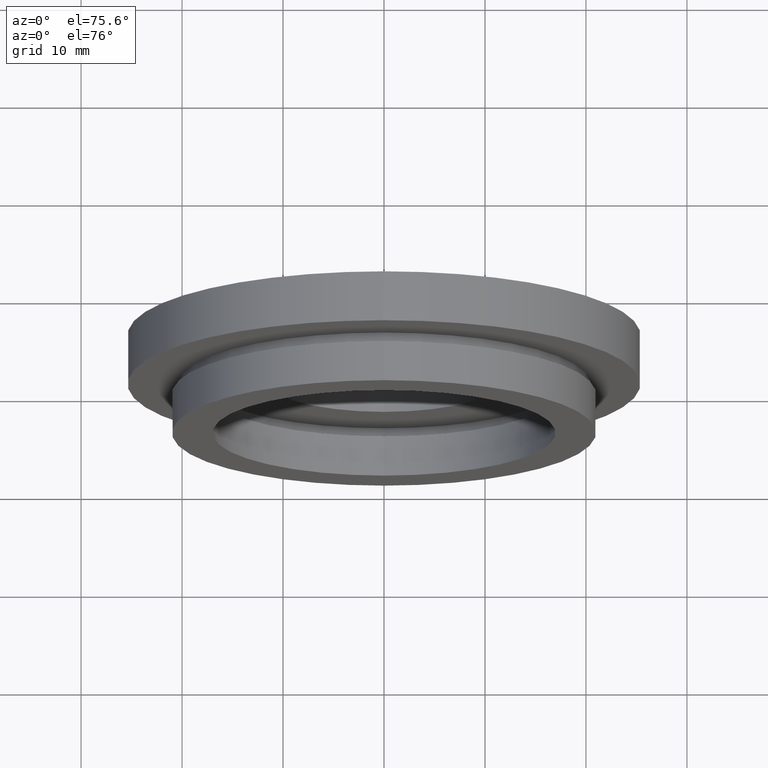
[diagram: clean part render]
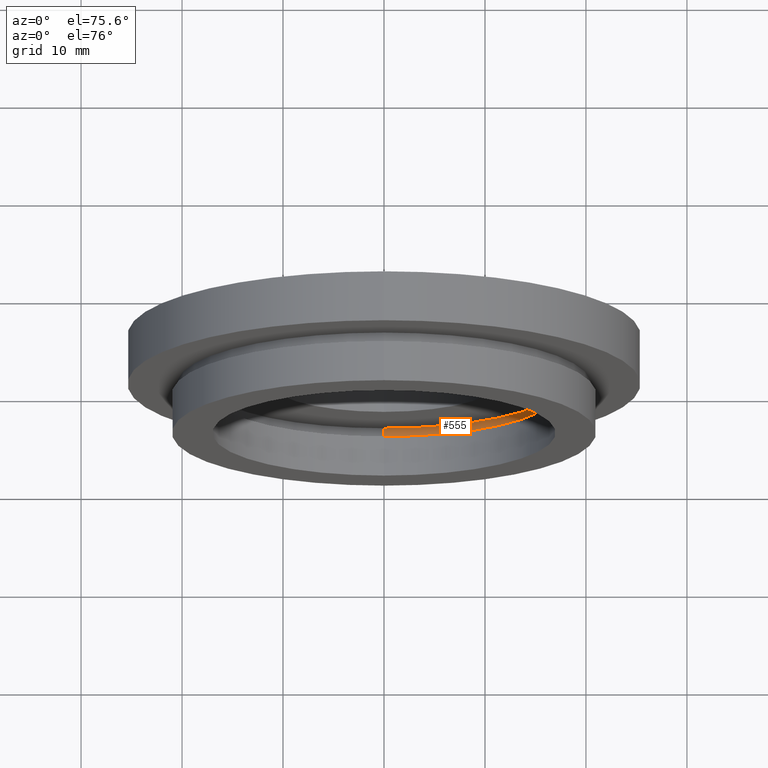
[diagram: same view with one face highlighted and labeled with its STEP entity id]
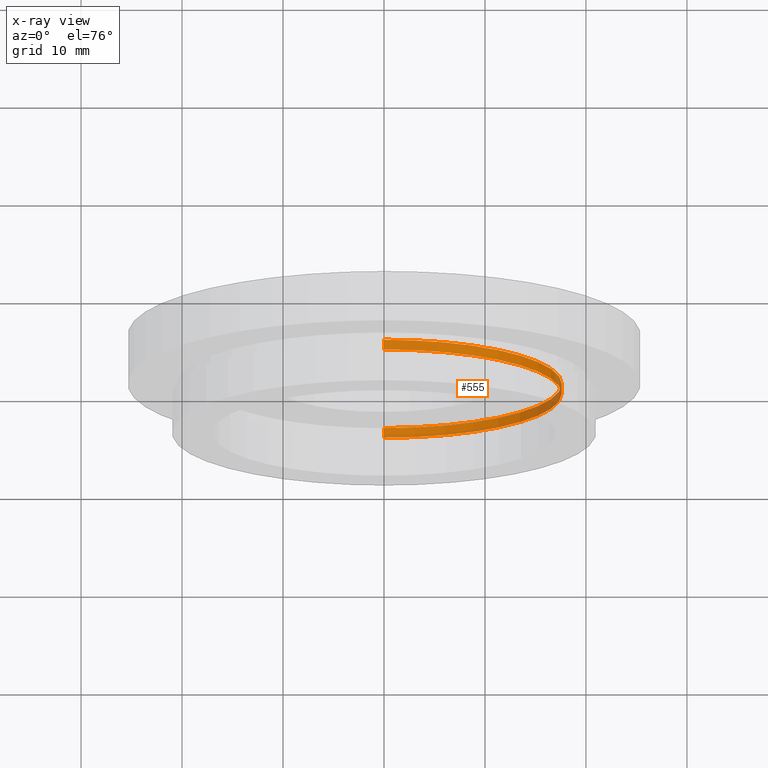
[diagram: x-ray of the same camera — body ghosted, the highlighted face saturated]
A machine part, auxiliary view. The second image highlights one B-rep face of the part: STEP entity #555.
The next image is the same camera in x-ray: the body ghosted, the highlighted face saturated — about 10% of this face is hidden behind the body in this view.
In plain terms, the highlighted cylindrical surface (partial cylindrical patch) has radius 17.6 mm, axis along (-0, 1, -0).
Its self-contained STEP definition (entity closure, byte-faithful):
#36 = CARTESIAN_POINT ( 'NONE',  ( 2.155378366499341600E-015, 17.41929831819392000, -17.60000000000000100 ) ) ;
#59 = CYLINDRICAL_SURFACE ( 'NONE', #417, 17.60000000000000100 ) ;
#75 = VECTOR ( 'NONE', #484, 1000.000000000000000 ) ;
#87 = AXIS2_PLACEMENT_3D ( 'NONE', #291, #316, #542 ) ;
#110 = VERTEX_POINT ( 'NONE', #313 ) ;
#126 = DIRECTION ( 'NONE',  ( -0.0000000000000000000, 1.000000000000000000, -0.0000000000000000000 ) ) ;
#170 = ORIENTED_EDGE ( 'NONE', *, *, #434, .F. ) ;
#195 = FACE_OUTER_BOUND ( 'NONE', #462, .T. ) ;
#209 = ORIENTED_EDGE ( 'NONE', *, *, #561, .T. ) ;
#247 = CARTESIAN_POINT ( 'NONE',  ( 0.0000000000000000000, 4.999999999999999100, 0.0000000000000000000 ) ) ;
#256 = CIRCLE ( 'NONE', #87, 17.60000000000000100 ) ;
#291 = CARTESIAN_POINT ( 'NONE',  ( 0.0000000000000000000, 4.000000000000000000, 0.0000000000000000000 ) ) ;
#303 = LINE ( 'NONE', #36, #549 ) ;
#306 = DIRECTION ( 'NONE',  ( 0.0000000000000000000, 0.0000000000000000000, 1.000000000000000000 ) ) ;
#313 = CARTESIAN_POINT ( 'NONE',  ( 2.155378366499341600E-015, 4.000000000000000000, -17.60000000000000100 ) ) ;
#315 = DIRECTION ( 'NONE',  ( -0.0000000000000000000, 1.000000000000000000, -0.0000000000000000000 ) ) ;
#316 = DIRECTION ( 'NONE',  ( -0.0000000000000000000, 1.000000000000000000, -0.0000000000000000000 ) ) ;
#323 = CARTESIAN_POINT ( 'NONE',  ( 0.0000000000000000000, 4.999999999999999100, 17.60000000000000100 ) ) ;
#345 = EDGE_CURVE ( 'NONE', #110, #623, #303, .T. ) ;
#348 = CIRCLE ( 'NONE', #373, 17.60000000000000100 ) ;
#373 = AXIS2_PLACEMENT_3D ( 'NONE', #247, #315, #306 ) ;
#417 = AXIS2_PLACEMENT_3D ( 'NONE', #580, #435, #557 ) ;
#421 = ORIENTED_EDGE ( 'NONE', *, *, #423, .T. ) ;
#423 = EDGE_CURVE ( 'NONE', #447, #623, #348, .T. ) ;
#427 = CARTESIAN_POINT ( 'NONE',  ( 0.0000000000000000000, 4.000000000000000000, 17.60000000000000100 ) ) ;
#434 = EDGE_CURVE ( 'NONE', #527, #110, #256, .T. ) ;
#435 = DIRECTION ( 'NONE',  ( -0.0000000000000000000, 1.000000000000000000, -0.0000000000000000000 ) ) ;
#441 = LINE ( 'NONE', #493, #75 ) ;
#447 = VERTEX_POINT ( 'NONE', #323 ) ;
#462 = EDGE_LOOP ( 'NONE', ( #595, #170, #209, #421 ) ) ;
#484 = DIRECTION ( 'NONE',  ( -0.0000000000000000000, 1.000000000000000000, -0.0000000000000000000 ) ) ;
#493 = CARTESIAN_POINT ( 'NONE',  ( 0.0000000000000000000, 17.41929831819392000, 17.60000000000000100 ) ) ;
#527 = VERTEX_POINT ( 'NONE', #427 ) ;
#530 = CARTESIAN_POINT ( 'NONE',  ( 2.155378366499341600E-015, 4.999999999999999100, -17.60000000000000100 ) ) ;
#542 = DIRECTION ( 'NONE',  ( 0.0000000000000000000, 0.0000000000000000000, 1.000000000000000000 ) ) ;
#549 = VECTOR ( 'NONE', #126, 1000.000000000000000 ) ;
#555 = ADVANCED_FACE ( 'NONE', ( #195 ), #59, .F. ) ;
#557 = DIRECTION ( 'NONE',  ( 0.0000000000000000000, 0.0000000000000000000, 1.000000000000000000 ) ) ;
#561 = EDGE_CURVE ( 'NONE', #527, #447, #441, .T. ) ;
#580 = CARTESIAN_POINT ( 'NONE',  ( 0.0000000000000000000, 17.41929831819392000, 0.0000000000000000000 ) ) ;
#595 = ORIENTED_EDGE ( 'NONE', *, *, #345, .F. ) ;
#623 = VERTEX_POINT ( 'NONE', #530 ) ;